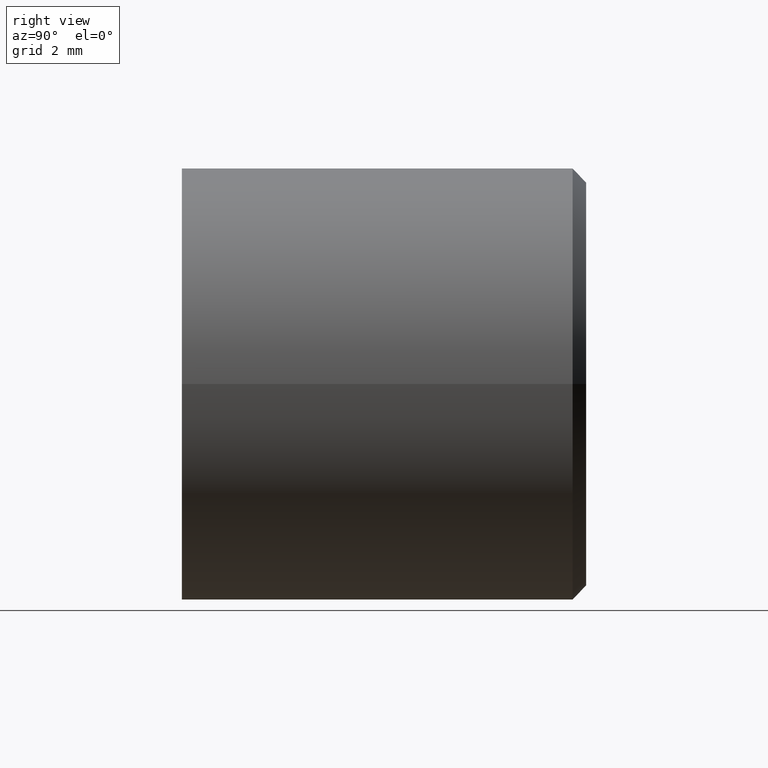
[diagram: clean part render]
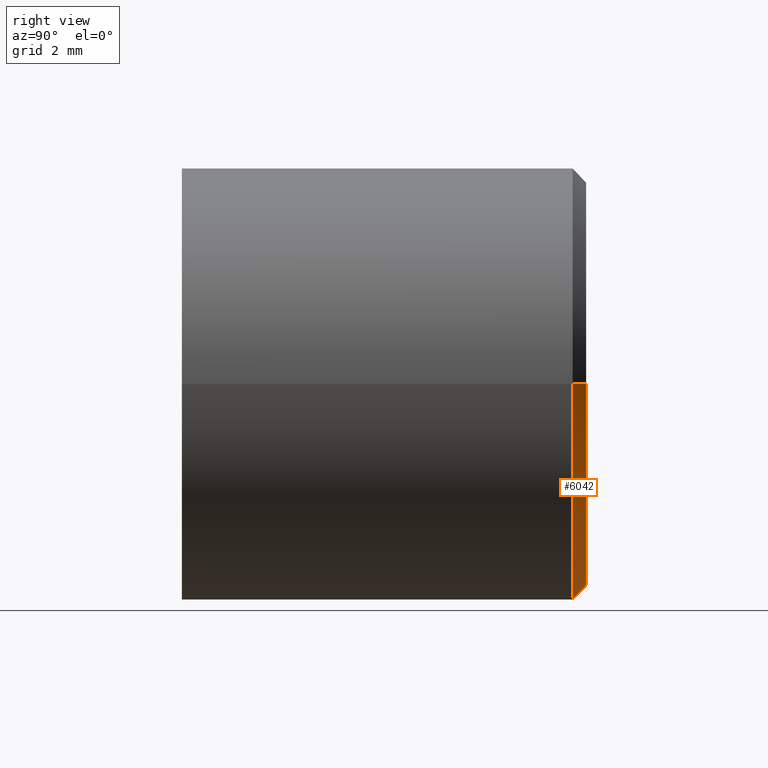
[diagram: same view with one face highlighted and labeled with its STEP entity id]
A machine part, right view. The second image highlights one B-rep face of the part: STEP entity #6042.
In plain terms, the highlighted conical surface has half-angle 45 deg.
Its self-contained STEP definition (entity closure, byte-faithful):
#12 = CARTESIAN_POINT ( 'NONE',  ( 8.000000000000000000, 14.49999999999999467, 9.797174393178825657E-16 ) ) ;
#202 = DIRECTION ( 'NONE',  ( 1.000000000000000000, 0.000000000000000000, 0.000000000000000000 ) ) ;
#1393 = EDGE_CURVE ( 'NONE', #7133, #5867, #10437, .T. ) ;
#1966 = AXIS2_PLACEMENT_3D ( 'NONE', #10322, #7287, #202 ) ;
#2403 = ORIENTED_EDGE ( 'NONE', *, *, #12796, .F. ) ;
#2628 = AXIS2_PLACEMENT_3D ( 'NONE', #10427, #11409, #7345 ) ;
#2668 = FACE_OUTER_BOUND ( 'NONE', #6034, .T. ) ;
#2860 = ORIENTED_EDGE ( 'NONE', *, *, #1393, .F. ) ;
#2875 = LINE ( 'NONE', #8526, #5245 ) ;
#2903 = CARTESIAN_POINT ( 'NONE',  ( 7.499999999999996447, 15.00000000000000000, 0.000000000000000000 ) ) ;
#4970 = ORIENTED_EDGE ( 'NONE', *, *, #10579, .F. ) ;
#5245 = VECTOR ( 'NONE', #9429, 1000.000000000000114 ) ;
#5619 = ORIENTED_EDGE ( 'NONE', *, *, #10378, .T. ) ;
#5867 = VERTEX_POINT ( 'NONE', #12 ) ;
#6034 = EDGE_LOOP ( 'NONE', ( #2403, #4970, #5619, #2860 ) ) ;
#6042 = ADVANCED_FACE ( 'NONE', ( #2668 ), #9028, .T. ) ;
#6556 = VECTOR ( 'NONE', #6871, 1000.000000000000114 ) ;
#6573 = DIRECTION ( 'NONE',  ( 1.000000000000000000, 0.000000000000000000, 0.000000000000000000 ) ) ;
#6871 = DIRECTION ( 'NONE',  ( 0.7071067811865474617, -0.7071067811865474617, 0.000000000000000000 ) ) ;
#7133 = VERTEX_POINT ( 'NONE', #8022 ) ;
#7287 = DIRECTION ( 'NONE',  ( -6.618464551199105246E-18, 1.000000000000000000, -0.000000000000000000 ) ) ;
#7345 = DIRECTION ( 'NONE',  ( 1.000000000000000000, 0.000000000000000000, 0.000000000000000000 ) ) ;
#7500 = CIRCLE ( 'NONE', #1966, 7.499999999999996447 ) ;
#7732 = AXIS2_PLACEMENT_3D ( 'NONE', #12707, #9558, #6573 ) ;
#8022 = CARTESIAN_POINT ( 'NONE',  ( -8.000000000000000000, 14.49999999999999467, 0.000000000000000000 ) ) ;
#8526 = CARTESIAN_POINT ( 'NONE',  ( -7.499999999999996447, 15.00000000000000000, 9.184850993605144000E-16 ) ) ;
#9028 = CONICAL_SURFACE ( 'NONE', #7732, 7.499999999999996447, 0.7853981633974482790 ) ;
#9186 = CARTESIAN_POINT ( 'NONE',  ( 7.499999999999996447, 15.00000000000000000, 0.000000000000000000 ) ) ;
#9429 = DIRECTION ( 'NONE',  ( -0.7071067811865474617, -0.7071067811865474617, 8.659560562354932858E-17 ) ) ;
#9558 = DIRECTION ( 'NONE',  ( 6.618464551199105246E-18, -1.000000000000000000, 0.000000000000000000 ) ) ;
#9918 = LINE ( 'NONE', #2903, #6556 ) ;
#10028 = VERTEX_POINT ( 'NONE', #10864 ) ;
#10322 = CARTESIAN_POINT ( 'NONE',  ( -1.145930379537765029E-32, 15.00000000000000000, 0.000000000000000000 ) ) ;
#10378 = EDGE_CURVE ( 'NONE', #10450, #5867, #9918, .T. ) ;
#10427 = CARTESIAN_POINT ( 'NONE',  ( 3.309232275599567260E-18, 14.49999999999999467, 0.000000000000000000 ) ) ;
#10437 = CIRCLE ( 'NONE', #2628, 8.000000000000000000 ) ;
#10450 = VERTEX_POINT ( 'NONE', #9186 ) ;
#10579 = EDGE_CURVE ( 'NONE', #10450, #10028, #7500, .T. ) ;
#10864 = CARTESIAN_POINT ( 'NONE',  ( -7.499999999999996447, 15.00000000000000000, 9.491012693391985815E-16 ) ) ;
#11409 = DIRECTION ( 'NONE',  ( 6.618464551199105246E-18, -1.000000000000000000, 0.000000000000000000 ) ) ;
#12707 = CARTESIAN_POINT ( 'NONE',  ( -1.113077324776155735E-32, 15.00000000000000000, 0.000000000000000000 ) ) ;
#12796 = EDGE_CURVE ( 'NONE', #10028, #7133, #2875, .T. ) ;